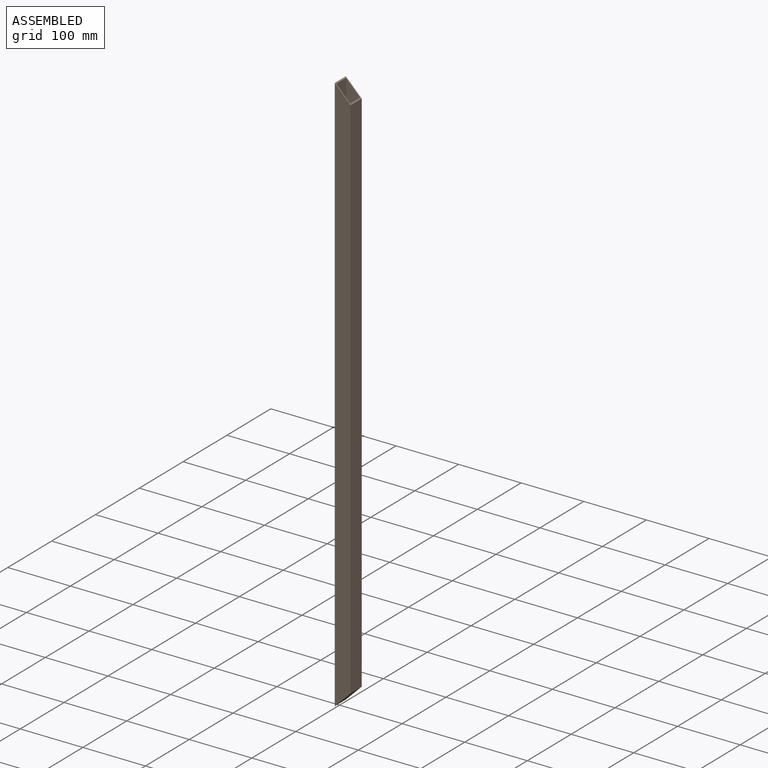
[diagram: assembled view]
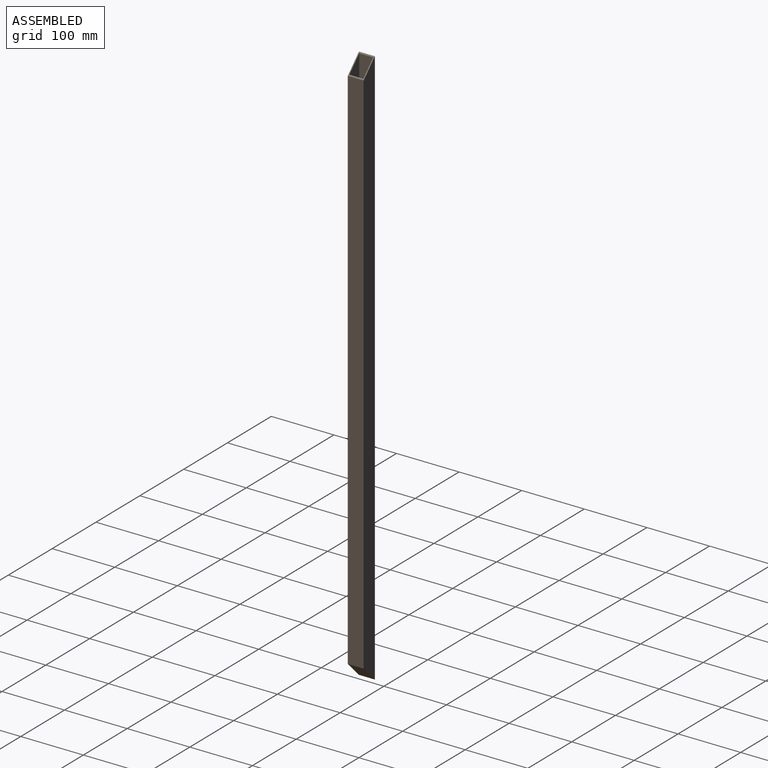
[diagram: assembled view, second angle]
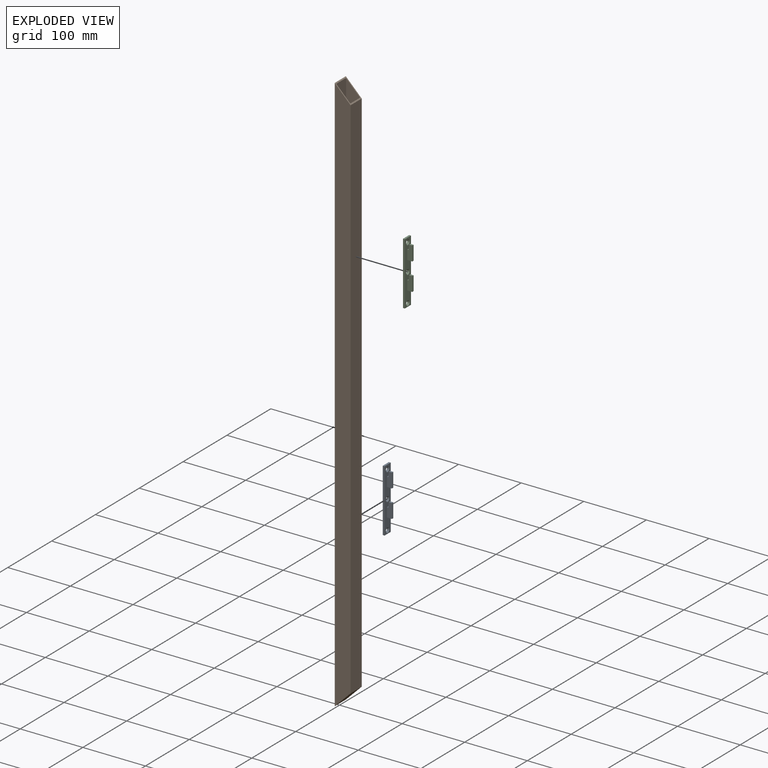
[diagram: exploded view]
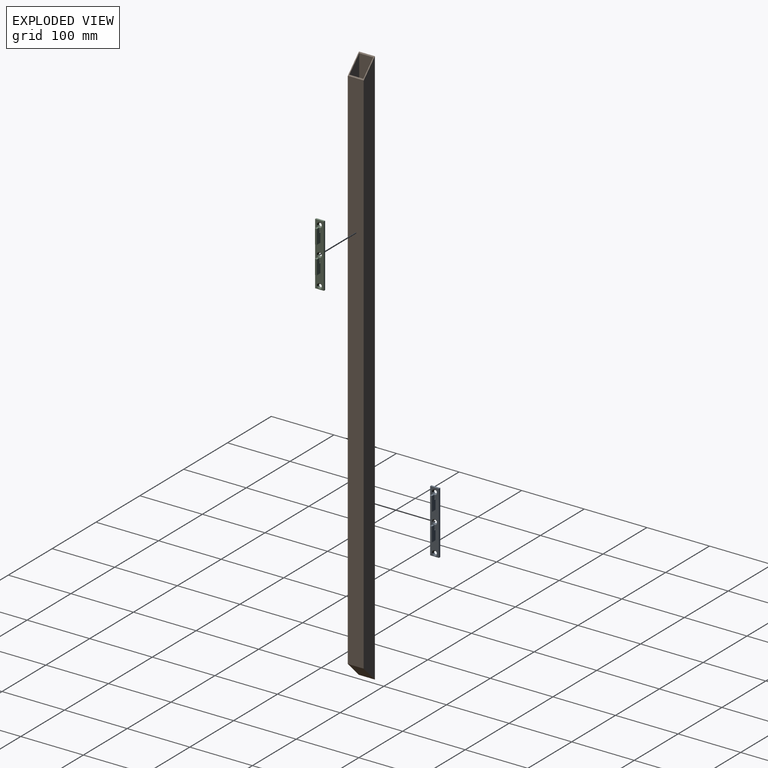
[diagram: exploded view, second angle]
ASSEMBLY  parts=3 mates=2
PART A: 26 faces, bbox 11x14x100 mm
  f0: plane 100x14mm, normal (1,0,0), area 1159.2mm2, adj f1,f3,f4,f5,f7,f9,f11,f12
  f1: plane 14x3mm, normal (0,0,1), area 42mm2, adj f0,f2,f4,f5
  f2: plane 100x14mm, normal (-1,0,0), area 1341.1mm2, adj f1,f3,f4,f5,f6,f8,f10
  f3: plane 14x3mm, normal (0,0,-1), area 42mm2, adj f0,f2,f4,f5
  f4: plane 100x3mm, normal (0,-1,0), area 300mm2, adj f0,f1,f2,f3
  f5: plane 100x3mm, normal (0,1,0), area 300mm2, adj f0,f1,f2,f3
  f6: cylinder r=2.5mm len=5mm, axis (1,0,0), area 23.6mm2, adj f2,f7
  f7: cone r=2.5mm half-angle=45deg, axis (1,0,0), area 43.3mm2, adj f0,f6
  f8: cylinder r=2.5mm len=5mm, axis (1,0,0), area 23.6mm2, adj f2,f9
  f9: cone r=2.5mm half-angle=45deg, axis (1,0,0), area 43.3mm2, adj f0,f8
  f10: cylinder r=2.5mm len=5mm, axis (1,0,0), area 23.6mm2, adj f2,f11
  f11: cone r=2.5mm half-angle=45deg, axis (1,0,0), area 43.3mm2, adj f0,f10
  f12: plane 8x3mm, normal (0,0,-1), area 24mm2, adj f0,f13,f17,f18
  f13: plane 23x3mm, normal (1,0,0), area 69mm2, adj f12,f14,f17,f18
  f14: plane 5x3mm, normal (0,0,1), area 15mm2, adj f13,f15,f17,f18
  f15: plane 8x3mm, normal (-0.99,0,0.12), area 24.2mm2, adj f14,f16,f17,f18
  f16: plane 3x2mm, normal (0,0,1), area 6mm2, adj f0,f15,f17,f18
  f17: plane 23x8mm, normal (0,-1,0), area 164mm2, adj f0,f12,f13,f14,f15,f16
  f18: plane 23x8mm, normal (0,1,0), area 164mm2, adj f0,f12,f13,f14,f15,f16
  f19: plane 8x3mm, normal (0,0,-1), area 24mm2, adj f0,f20,f24,f25
  f20: plane 23x3mm, normal (1,0,0), area 69mm2, adj f19,f21,f24,f25
  f21: plane 5x3mm, normal (0,0,1), area 15mm2, adj f20,f22,f24,f25
  f22: plane 8x3mm, normal (-0.99,0,0.12), area 24.2mm2, adj f21,f23,f24,f25
  f23: plane 3x2mm, normal (0,0,1), area 6mm2, adj f0,f22,f24,f25
  f24: plane 23x8mm, normal (0,-1,0), area 164mm2, adj f0,f19,f20,f21,f22,f23
  f25: plane 23x8mm, normal (0,1,0), area 164mm2, adj f0,f19,f20,f21,f22,f23
PART B: 28 faces, bbox 25.4x25.4x900 mm
  f0: plane 894.88x22.4mm, normal (1,0,0), area 19368.6mm2, adj f2,f3,f6,f10,f11,f12,f13,f14
  f1: plane 900x25.4mm, normal (-1,0,0), area 22183.3mm2, adj f5,f6,f8,f9,f11,f12,f13,f14
  f2: plane 894.88x22.4mm, normal (0,-1,0), area 19543.5mm2, adj f0,f4,f6,f10
  f3: plane 894.88x22.4mm, normal (0,1,0), area 19543.5mm2, adj f0,f4,f6,f10
  f4: plane 850.08x22.4mm, normal (-1,0,0), area 19041.8mm2, adj f2,f3,f6,f10
  f5: plane 25.4x25.4mm, normal (0.71,0,-0.71), area 912.4mm2, adj f1,f7,f8,f9
  f6: plane 25.4x25.4mm, normal (0.71,0,0.71), area 202.8mm2, adj f0,f1,f2,f3,f4,f7,f8,f9
  f7: plane 849.2x25.4mm, normal (1,0,0), area 21569.7mm2, adj f5,f6,f8,f9
  f8: plane 900x25.4mm, normal (0,1,0), area 22214.8mm2, adj f1,f5,f6,f7
  f9: plane 900x25.4mm, normal (0,-1,0), area 22214.8mm2, adj f1,f5,f6,f7
  f10: plane 22.4x22.4mm, normal (-0.71,0,0.71), area 709.6mm2, adj f0,f2,f3,f4
  f11: plane 25x1.5mm, normal (0,1,0), area 37.5mm2, adj f0,f1,f12,f14
  f12: plane 5x1.5mm, normal (0,0,-1), area 7.5mm2, adj f0,f1,f11,f13
  f13: plane 25x1.5mm, normal (0,-1,0), area 37.5mm2, adj f0,f1,f12,f14
  f14: plane 5x1.5mm, normal (0,0,1), area 7.5mm2, adj f0,f1,f11,f13
  f15: plane 25x1.5mm, normal (0,1,0), area 37.5mm2, adj f0,f1,f16,f18
  f16: plane 5x1.5mm, normal (0,0,-1), area 7.5mm2, adj f0,f1,f15,f17
  f17: plane 25x1.5mm, normal (0,-1,0), area 37.5mm2, adj f0,f1,f16,f18
  f18: plane 5x1.5mm, normal (0,0,1), area 7.5mm2, adj f0,f1,f15,f17
  f19: plane 25x1.5mm, normal (0,1,0), area 37.5mm2, adj f0,f1,f20,f22
  f20: plane 5x1.5mm, normal (0,0,-1), area 7.5mm2, adj f0,f1,f19,f21
  f21: plane 25x1.5mm, normal (0,-1,0), area 37.5mm2, adj f0,f1,f20,f22
  f22: plane 5x1.5mm, normal (0,0,1), area 7.5mm2, adj f0,f1,f19,f21
  f23: cylinder r=7.5mm len=15mm, axis (-1,0,0), area 70.7mm2, adj f0,f1
  f24: plane 25x1.5mm, normal (0,1,0), area 37.5mm2, adj f0,f1,f25,f27
  f25: plane 5x1.5mm, normal (0,0,-1), area 7.5mm2, adj f0,f1,f24,f26
  f26: plane 25x1.5mm, normal (0,-1,0), area 37.5mm2, adj f0,f1,f25,f27
  f27: plane 5x1.5mm, normal (0,0,1), area 7.5mm2, adj f0,f1,f24,f26
PART C: 26 faces, bbox 11x14x100 mm
  f0: plane 100x14mm, normal (1,0,0), area 1159.2mm2, adj f1,f3,f4,f5,f7,f9,f11,f12
  f1: plane 14x3mm, normal (0,0,1), area 42mm2, adj f0,f2,f4,f5
  f2: plane 100x14mm, normal (-1,0,0), area 1341.1mm2, adj f1,f3,f4,f5,f6,f8,f10
  f3: plane 14x3mm, normal (0,0,-1), area 42mm2, adj f0,f2,f4,f5
  f4: plane 100x3mm, normal (0,-1,0), area 300mm2, adj f0,f1,f2,f3
  f5: plane 100x3mm, normal (0,1,0), area 300mm2, adj f0,f1,f2,f3
  f6: cylinder r=2.5mm len=5mm, axis (1,0,0), area 23.6mm2, adj f2,f7
  f7: cone r=2.5mm half-angle=45deg, axis (1,0,0), area 43.3mm2, adj f0,f6
  f8: cylinder r=2.5mm len=5mm, axis (1,0,0), area 23.6mm2, adj f2,f9
  f9: cone r=2.5mm half-angle=45deg, axis (1,0,0), area 43.3mm2, adj f0,f8
  f10: cylinder r=2.5mm len=5mm, axis (1,0,0), area 23.6mm2, adj f2,f11
  f11: cone r=2.5mm half-angle=45deg, axis (1,0,0), area 43.3mm2, adj f0,f10
  f12: plane 8x3mm, normal (0,0,-1), area 24mm2, adj f0,f13,f17,f18
  f13: plane 23x3mm, normal (1,0,0), area 69mm2, adj f12,f14,f17,f18
  f14: plane 5x3mm, normal (0,0,1), area 15mm2, adj f13,f15,f17,f18
  f15: plane 8x3mm, normal (-0.99,0,0.12), area 24.2mm2, adj f14,f16,f17,f18
  f16: plane 3x2mm, normal (0,0,1), area 6mm2, adj f0,f15,f17,f18
  f17: plane 23x8mm, normal (0,-1,0), area 164mm2, adj f0,f12,f13,f14,f15,f16
  f18: plane 23x8mm, normal (0,1,0), area 164mm2, adj f0,f12,f13,f14,f15,f16
  f19: plane 8x3mm, normal (0,0,-1), area 24mm2, adj f0,f20,f24,f25
  f20: plane 23x3mm, normal (1,0,0), area 69mm2, adj f19,f21,f24,f25
  f21: plane 5x3mm, normal (0,0,1), area 15mm2, adj f20,f22,f24,f25
  f22: plane 8x3mm, normal (-0.99,0,0.12), area 24.2mm2, adj f21,f23,f24,f25
  f23: plane 3x2mm, normal (0,0,1), area 6mm2, adj f0,f22,f24,f25
  f24: plane 23x8mm, normal (0,-1,0), area 164mm2, adj f0,f19,f20,f21,f22,f23
  f25: plane 23x8mm, normal (0,1,0), area 164mm2, adj f0,f19,f20,f21,f22,f23
PLACE A t=(38.25,-17.63,-0.75)mm
PLACE B t=(26.25,-17.63,-3.75)mm
PLACE C t=(38.25,-17.63,-2.75)mm
MATE fastened C.f0 <-> B.f1  axis (1,0,0) through (13.55,-17.63,230.25)mm
MATE fastened A.f0 <-> B.f1  axis (1,0,0) through (13.55,-17.63,-167.75)mm
